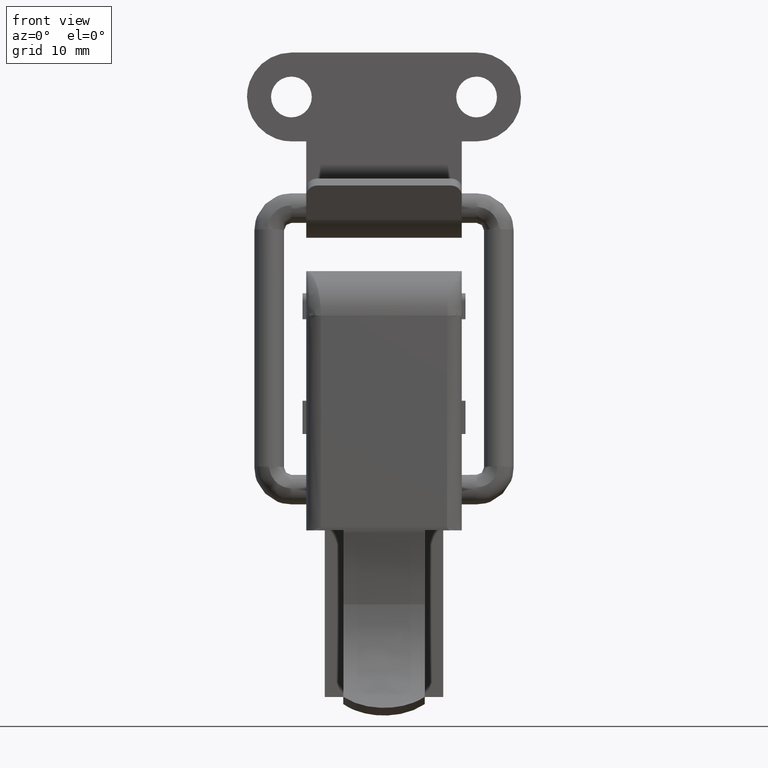
[diagram: clean part render]
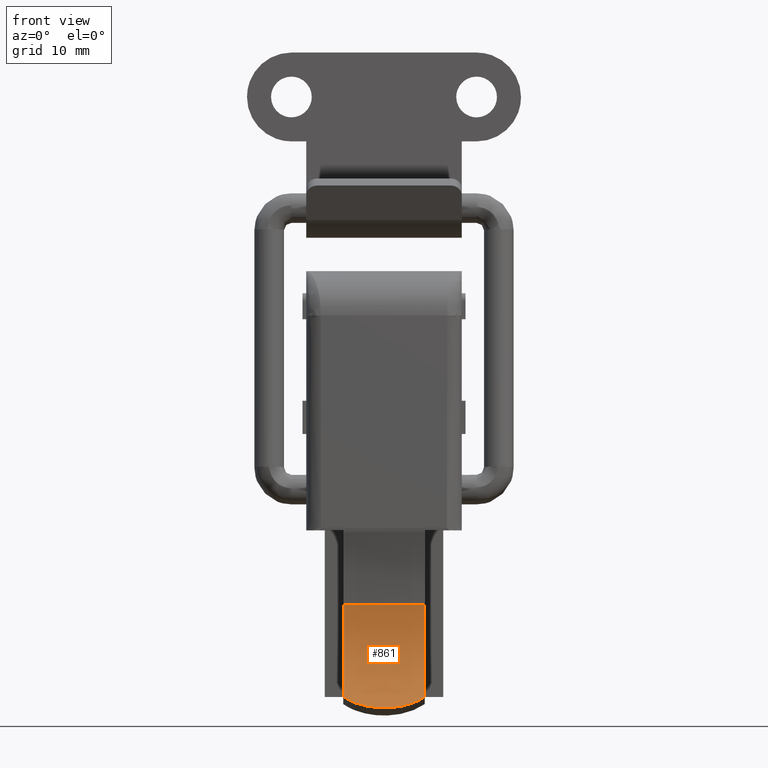
[diagram: same view with one face highlighted and labeled with its STEP entity id]
A machine part, front view. The second image highlights one B-rep face of the part: STEP entity #861.
In plain terms, the highlighted face is a freeform B-spline surface patch.
Its self-contained STEP definition (entity closure, byte-faithful):
#544=CARTESIAN_POINT('',(5.500000000000000,-4.499999999999915,-15.500000000000000));
#545=VERTEX_POINT('',#544);
#554=CARTESIAN_POINT('',(5.500000000000000,-9.941826598765308,-27.966299676607751));
#555=VERTEX_POINT('',#554);
#556=CARTESIAN_POINT('',(5.500000000000000,-4.499999999999915,-15.500000000000000));
#557=CARTESIAN_POINT('',(5.499999999999982,-4.499959252869144,-16.338185881764939));
#558=CARTESIAN_POINT('',(5.500000000000027,-4.610739584240390,-17.832329882879382));
#559=CARTESIAN_POINT('',(5.499999999999975,-5.125371509514376,-20.297971831046020));
#560=CARTESIAN_POINT('',(5.500000000000049,-6.012543532080105,-22.700771627177598));
#561=CARTESIAN_POINT('',(5.499999999999922,-7.595211112349608,-25.458956064218199));
#562=CARTESIAN_POINT('',(5.500000000000027,-9.006282111788911,-27.099276295678020));
#563=CARTESIAN_POINT('',(5.500000000000000,-9.941826598765308,-27.966299676607751));
#564=B_SPLINE_CURVE_WITH_KNOTS('',3,(#556,#557,#558,#559,#560,#561,#562,#563),.UNSPECIFIED.,.F.,.U.,(4,1,1,1,1,4),(0.000000014383959,2.514557458591236,4.482482877999342,7.543672118181953,10.167579089916179,13.994087940821739),.UNSPECIFIED.);
#565=EDGE_CURVE('',#545,#555,#564,.T.);
#603=CARTESIAN_POINT('',(-5.500000000000000,-4.499999999999915,-15.500000000000000));
#604=VERTEX_POINT('',#603);
#646=CARTESIAN_POINT('',(-5.500000000000000,-9.941826598765379,-27.966299676607800));
#647=VERTEX_POINT('',#646);
#653=CARTESIAN_POINT('',(-5.500000000000000,-9.941826598765379,-27.966299676607800));
#654=CARTESIAN_POINT('',(-5.500000000000012,-9.220208866699480,-27.297379054447809));
#655=CARTESIAN_POINT('',(-5.499999999999982,-7.967408607732165,-25.915019589274610));
#656=CARTESIAN_POINT('',(-5.500000000000007,-6.502361813441479,-23.641323350431090));
#657=CARTESIAN_POINT('',(-5.500000000000006,-5.576026344783641,-21.573708919826700));
#658=CARTESIAN_POINT('',(-5.500000000000003,-4.941836449875611,-19.516608512913439));
#659=CARTESIAN_POINT('',(-5.499999999999991,-4.582344925801956,-17.577243251691449));
#660=CARTESIAN_POINT('',(-5.500000000000032,-4.499986966028475,-16.155968634178912));
#661=CARTESIAN_POINT('',(-5.500000000000000,-4.499999999999915,-15.500000000000000));
#662=B_SPLINE_CURVE_WITH_KNOTS('',3,(#653,#654,#655,#656,#657,#658,#659,#660,#661),.UNSPECIFIED.,.F.,.U.,(4,1,1,1,1,1,4),(0.000000014389418,2.951876632640872,5.575773538963620,8.090327399797683,9.730261644374647,12.026177389080109,13.994087940821840),.UNSPECIFIED.);
#663=EDGE_CURVE('',#647,#604,#662,.T.);
#683=CARTESIAN_POINT('',(-5.500000000000011,-9.941826598765370,-27.966299676607829));
#684=CARTESIAN_POINT('',(-5.319702460180029,-10.074419362106640,-28.089233521469829));
#685=CARTESIAN_POINT('',(-5.131320184924658,-10.203325804931840,-28.204819518843660));
#686=CARTESIAN_POINT('',(-4.836154475063387,-10.390085389000619,-28.367657869840940));
#687=CARTESIAN_POINT('',(-4.735628601842086,-10.451255955021709,-28.420194358120021));
#688=CARTESIAN_POINT('',(-4.530377368825561,-10.571094887840371,-28.521720326917311));
#689=CARTESIAN_POINT('',(-4.426380114289660,-10.629339043691470,-28.570351746731280));
#690=CARTESIAN_POINT('',(-3.899567024069235,-10.911901663049850,-28.803308016119509));
#691=CARTESIAN_POINT('',(-3.456473502055824,-11.110474609678141,-28.957369336580630));
#692=CARTESIAN_POINT('',(-2.757507863753030,-11.359063586148521,-29.144492129593619));
#693=CARTESIAN_POINT('',(-2.518759522511520,-11.433671149792699,-29.199472856229342));
#694=CARTESIAN_POINT('',(-2.151369887927699,-11.531712501050929,-29.270798001679712));
#695=CARTESIAN_POINT('',(-2.027236804463025,-11.562086643159519,-29.292716695716461));
#696=CARTESIAN_POINT('',(-1.778633925894813,-11.617330482727491,-29.332353340944440));
#697=CARTESIAN_POINT('',(-1.653825558804101,-11.642297706313791,-29.350142656892292));
#698=CARTESIAN_POINT('',(-1.027247601354020,-11.753695612880939,-29.429159659830230));
#699=CARTESIAN_POINT('',(-0.517926273064375,-11.799981355865480,-29.461004201112281));
#700=CARTESIAN_POINT('',(0.517771409222896,-11.799990620634039,-29.461010638211128));
#701=CARTESIAN_POINT('',(1.025620514939309,-11.753728471667319,-29.429175550652591));
#702=CARTESIAN_POINT('',(1.773442109314995,-11.621157885940621,-29.335151374007751));
#703=CARTESIAN_POINT('',(2.020377408423462,-11.566401611175561,-29.296016998726881));
#704=CARTESIAN_POINT('',(2.387285185118967,-11.468882901232639,-29.225097640662572));
#705=CARTESIAN_POINT('',(2.509331762567007,-11.433701689530521,-29.199335598010698));
#706=CARTESIAN_POINT('',(2.749978989579327,-11.358991444081560,-29.144123385951659));
#707=CARTESIAN_POINT('',(2.868706476950802,-11.319445749492200,-29.114662208268470));
#708=CARTESIAN_POINT('',(3.454644407493487,-11.111397438630000,-28.958095225791649));
#709=CARTESIAN_POINT('',(3.898981585184747,-10.912188896466750,-28.803538162054998));
#710=CARTESIAN_POINT('',(4.425990554539470,-10.629554665266831,-28.570531175096232));
#711=CARTESIAN_POINT('',(4.529957929197024,-10.571331510269919,-28.521918409136340));
#712=CARTESIAN_POINT('',(4.735021499146663,-10.451618653019841,-28.420504000398889));
#713=CARTESIAN_POINT('',(4.835822469696604,-10.390291402382740,-28.367836166108528));
#714=CARTESIAN_POINT('',(5.131248445910064,-10.203379292439109,-28.204868809894609));
#715=CARTESIAN_POINT('',(5.319704667885034,-10.074417738536400,-28.089232016170989));
#716=CARTESIAN_POINT('',(5.500000000000004,-9.941826598765303,-27.966299676607768));
#717=B_SPLINE_CURVE_WITH_KNOTS('',3,(#683,#684,#685,#686,#687,#688,#689,#690,#691,#692,#693,#694,#695,#696,#697,#698,#699,#700,#701,#702,#703,#704,#705,#706,#707,#708,#709,#710,#711,#712,#713,#714,#715,#716),.UNSPECIFIED.,.F.,.U.,(4,2,2,2,2,2,2,2,2,2,2,2,2,2,2,2,4),(0.0,0.062499999999999,0.093749999999999,0.124999999999999,0.249999999999998,0.312499999999998,0.343749999999998,0.374999999999998,0.499999999999999,0.625000000000000,0.687500000000000,0.718750000000000,0.750000000000000,0.875000000000000,0.906250000000000,0.937500000000000,1.0),.UNSPECIFIED.);
#718=EDGE_CURVE('',#647,#555,#717,.T.);
#837=CARTESIAN_POINT('',(5.775000000000001,-12.365906658104009,-29.837654578819059));
#838=CARTESIAN_POINT('',(-5.781875000000000,-12.365906658104009,-29.837654578819059));
#839=CARTESIAN_POINT('',(5.775000000000002,-4.063044616215183,-24.548148092344320));
#840=CARTESIAN_POINT('',(-5.781875000000001,-4.063044616215183,-24.548148092344320));
#841=CARTESIAN_POINT('',(5.775000000000001,-4.518177326676558,-14.714061903329872));
#842=CARTESIAN_POINT('',(-5.781875000000001,-4.518177326676558,-14.714061903329872));
#850=(BOUNDED_SURFACE()B_SPLINE_SURFACE(1,2,((#837,#839,#841),(#838,#840,#842)),.UNSPECIFIED.,.F.,.F.,.U.)B_SPLINE_SURFACE_WITH_KNOTS((2,2),(3,3),(0.0,11.556875000000000),(0.0,18.268106324649601),.UNSPECIFIED.)GEOMETRIC_REPRESENTATION_ITEM()RATIONAL_B_SPLINE_SURFACE(((1.0,0.861625364047212,0.991362161529327),(1.0,0.861625364047212,0.991362161529327)))REPRESENTATION_ITEM('')SURFACE());
#851=ORIENTED_EDGE('',*,*,#565,.F.);
#852=CARTESIAN_POINT('',(5.500000000000000,-4.499999999999915,-15.500000000000000));
#853=CARTESIAN_POINT('',(-5.500000000000000,-4.499999999999915,-15.500000000000000));
#854=QUASI_UNIFORM_CURVE('',1,(#852,#853),.UNSPECIFIED.,.F.,.U.);
#855=EDGE_CURVE('',#545,#604,#854,.T.);
#856=ORIENTED_EDGE('',*,*,#855,.T.);
#857=ORIENTED_EDGE('',*,*,#663,.F.);
#858=ORIENTED_EDGE('',*,*,#718,.T.);
#859=EDGE_LOOP('',(#851,#856,#857,#858));
#860=FACE_OUTER_BOUND('',#859,.T.);
#861=ADVANCED_FACE('',(#860),#850,.F.);